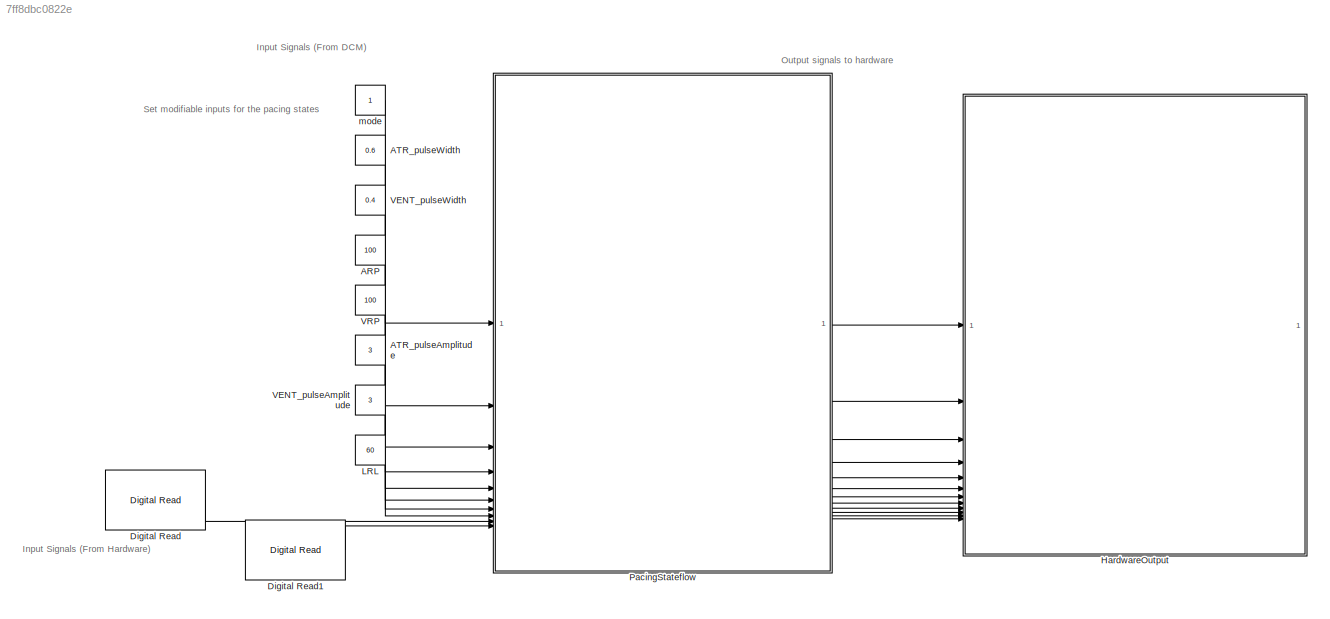
MODEL slx_7ff8dbc0822e
KIND model
CONFIG AbsTol = auto
CONFIG EnableMultiTasking = on
CONFIG FixedStep = 1e-3
CONFIG MaxStep = auto
CONFIG MinStep = auto
CONFIG RelTol = 1e-3
CONFIG SampleTimeConstraint = Unconstrained
CONFIG SolverName = FixedStepAuto
CONFIG StartTime = 0.0
CONFIG StopTime = 10.0
BLOCK [Constant] ARP
  Value = 100
BLOCK [Constant] ATR_pulseAmplitude
  Value = 3
BLOCK [Constant] ATR_pulseWidth
  OutDataTypeStr = double
  Value = 0.6
BLOCK [Reference] Digital Read  REF=frdmk64flib/Digital Read
  SourceBlock = frdmk64flib/Digital Read
  SourceType = freedomk64f.DigitalRead
BLOCK [Reference] Digital Read1  REF=frdmk64flib/Digital Read
  SourceBlock = frdmk64flib/Digital Read
  SourceType = freedomk64f.DigitalRead
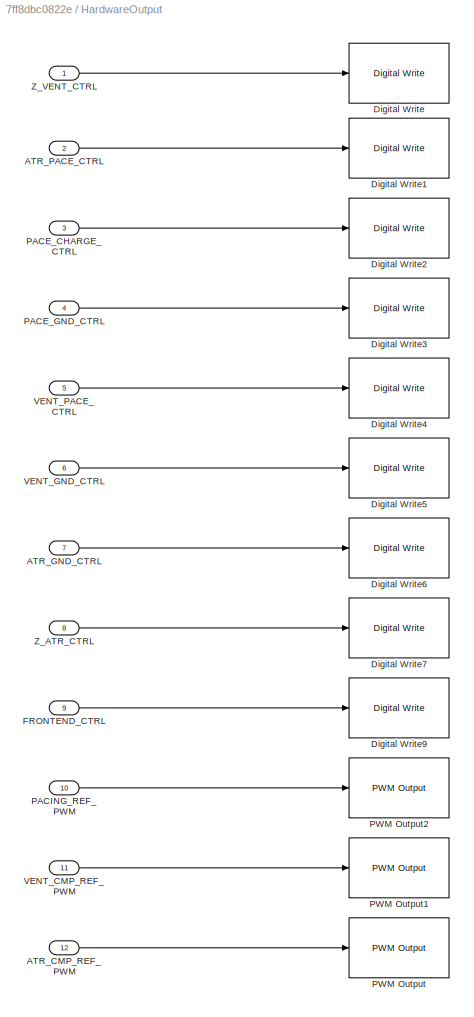
BLOCK [SubSystem] HardwareOutput
BLOCK [Inport] HardwareOutput/ATR_CMP_REF_PWM
  Port = 12
BLOCK [Inport] HardwareOutput/ATR_GND_CTRL
  Port = 7
BLOCK [Inport] HardwareOutput/ATR_PACE_CTRL
  Port = 2
BLOCK [Reference] HardwareOutput/Digital Write  REF=frdmk64flib/Digital Write
  SourceBlock = frdmk64flib/Digital Write
  SourceType = freedomk64f.DigitalWrite
BLOCK [Reference] HardwareOutput/Digital Write1  REF=frdmk64flib/Digital Write
  SourceBlock = frdmk64flib/Digital Write
  SourceType = freedomk64f.DigitalWrite
BLOCK [Reference] HardwareOutput/Digital Write2  REF=frdmk64flib/Digital Write
  SourceBlock = frdmk64flib/Digital Write
  SourceType = freedomk64f.DigitalWrite
BLOCK [Reference] HardwareOutput/Digital Write3  REF=frdmk64flib/Digital Write
  SourceBlock = frdmk64flib/Digital Write
  SourceType = freedomk64f.DigitalWrite
BLOCK [Reference] HardwareOutput/Digital Write4  REF=frdmk64flib/Digital Write
  SourceBlock = frdmk64flib/Digital Write
  SourceType = freedomk64f.DigitalWrite
BLOCK [Reference] HardwareOutput/Digital Write5  REF=frdmk64flib/Digital Write
  SourceBlock = frdmk64flib/Digital Write
  SourceType = freedomk64f.DigitalWrite
BLOCK [Reference] HardwareOutput/Digital Write6  REF=frdmk64flib/Digital Write
  SourceBlock = frdmk64flib/Digital Write
  SourceType = freedomk64f.DigitalWrite
BLOCK [Reference] HardwareOutput/Digital Write7  REF=frdmk64flib/Digital Write
  SourceBlock = frdmk64flib/Digital Write
  SourceType = freedomk64f.DigitalWrite
BLOCK [Reference] HardwareOutput/Digital Write9  REF=frdmk64flib/Digital Write
  SourceBlock = frdmk64flib/Digital Write
  SourceType = freedomk64f.DigitalWrite
BLOCK [Inport] HardwareOutput/FRONTEND_CTRL
  Port = 9
BLOCK [Inport] HardwareOutput/PACE_CHARGE_CTRL
  Port = 3
BLOCK [Inport] HardwareOutput/PACE_GND_CTRL
  Port = 4
BLOCK [Inport] HardwareOutput/PACING_REF_PWM
  Port = 10
BLOCK [Reference] HardwareOutput/PWM Output  REF=frdmk64flib/PWM Output
  SourceBlock = frdmk64flib/PWM Output
  SourceType = freedomk64f.PWMOutput
BLOCK [Reference] HardwareOutput/PWM Output1  REF=frdmk64flib/PWM Output
  SourceBlock = frdmk64flib/PWM Output
  SourceType = freedomk64f.PWMOutput
BLOCK [Reference] HardwareOutput/PWM Output2  REF=frdmk64flib/PWM Output
  SourceBlock = frdmk64flib/PWM Output
  SourceType = freedomk64f.PWMOutput
BLOCK [Inport] HardwareOutput/VENT_CMP_REF_PWM
  Port = 11
BLOCK [Inport] HardwareOutput/VENT_GND_CTRL
  Port = 6
BLOCK [Inport] HardwareOutput/VENT_PACE_CTRL
  Port = 5
BLOCK [Inport] HardwareOutput/Z_ATR_CTRL
  Port = 8
BLOCK [Inport] HardwareOutput/Z_VENT_CTRL
BLOCK [Constant] LRL
  Value = 60
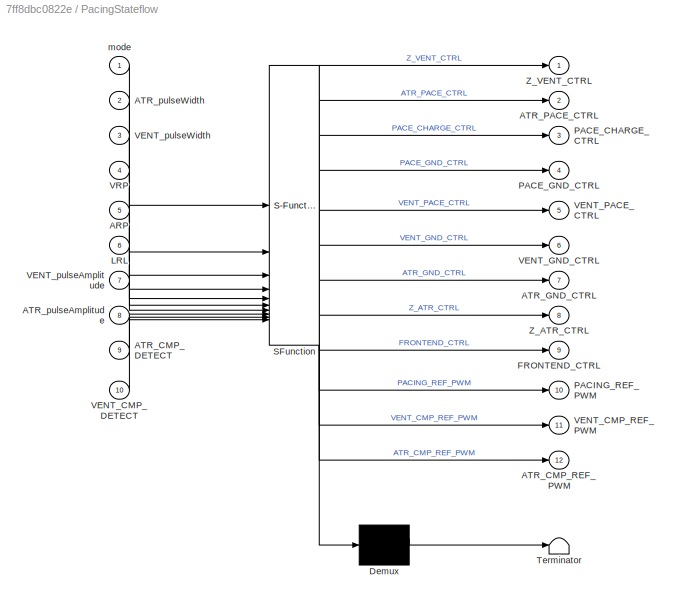
BLOCK [SubSystem] PacingStateflow
  ErrorFcn = Stateflow.Translate.translate
  PermitHierarchicalResolution = ExplicitOnly
  PortSchema = {"entries":[{"content":{"sides":[{"content":{"connectorIds":["In1","In2","In3","In5","In4","In8","In7","In6","In9","In10"]},"type":"ConnectorPlacement.EquallySpacedRectSide","uuid":"576c6451-25f7-4bf9-8ba9-b62bfe0038eb"},{"content":{"connectorIds":["Out1","Out2","Out3","Out4","Out5","Out6","Out7","Out8","Out9","Out10","Out11","Out12"],"side":"RIGHT"},"type":"ConnectorPlacement.EquallySpacedRectSid...<+375ch>
  SFBlockType = Chart
  TreatAsAtomicUnit = on
BLOCK [Demux] PacingStateflow/ Demux 
  Outputs = 1
BLOCK [S-Function] PacingStateflow/ SFunction 
  EnableBusSupport = on
  FunctionName = sf_sfun
  PortCounts = [10 13]
  SFcnIsStateOwnerBlock = off
  SFunctionDeploymentMode = off
  Tag = Stateflow S-Function 3
BLOCK [Terminator] PacingStateflow/ Terminator 
BLOCK [Inport] PacingStateflow/ARP
  Port = 5
BLOCK [Inport] PacingStateflow/ATR_CMP_DETECT
  Port = 9
BLOCK [Outport] PacingStateflow/ATR_CMP_REF_PWM
  Port = 12
BLOCK [Outport] PacingStateflow/ATR_GND_CTRL
  Port = 7
BLOCK [Outport] PacingStateflow/ATR_PACE_CTRL
  Port = 2
BLOCK [Inport] PacingStateflow/ATR_pulseAmplitude
  Port = 8
BLOCK [Inport] PacingStateflow/ATR_pulseWidth
  Port = 2
BLOCK [Outport] PacingStateflow/FRONTEND_CTRL
  Port = 9
BLOCK [Inport] PacingStateflow/LRL
  Port = 6
BLOCK [Outport] PacingStateflow/PACE_CHARGE_CTRL
  Port = 3
BLOCK [Outport] PacingStateflow/PACE_GND_CTRL
  Port = 4
BLOCK [Outport] PacingStateflow/PACING_REF_PWM
  Port = 10
BLOCK [Inport] PacingStateflow/VENT_CMP_DETECT
  Port = 10
BLOCK [Outport] PacingStateflow/VENT_CMP_REF_PWM
  Port = 11
BLOCK [Outport] PacingStateflow/VENT_GND_CTRL
  Port = 6
BLOCK [Outport] PacingStateflow/VENT_PACE_CTRL
  Port = 5
BLOCK [Inport] PacingStateflow/VENT_pulseAmplitude
  Port = 7
BLOCK [Inport] PacingStateflow/VENT_pulseWidth
  Port = 3
BLOCK [Inport] PacingStateflow/VRP
  Port = 4
BLOCK [Outport] PacingStateflow/Z_ATR_CTRL
  Port = 8
BLOCK [Outport] PacingStateflow/Z_VENT_CTRL
BLOCK [Inport] PacingStateflow/mode
BLOCK [Constant] VENT_pulseAmplitude
  Value = 3
BLOCK [Constant] VENT_pulseWidth
  Value = 0.4
BLOCK [Constant] VRP
  OutDataTypeStr = double
  Value = 100
BLOCK [Constant] mode
  OutDataTypeStr = int32
ANNOTATION (root): Input Signals (From Hardware)
ANNOTATION (root): Output signals to hardware
ANNOTATION (root): Input Signals (From DCM)
ANNOTATION (root): Set modifiable inputs for the pacing states
LINE ARP:1 -> PacingStateflow:5
LINE ATR_pulseAmplitude:1 -> PacingStateflow:8
LINE ATR_pulseWidth:1 -> PacingStateflow:2
LINE Digital Read1:1 -> PacingStateflow:10
LINE Digital Read:1 -> PacingStateflow:9
LINE HardwareOutput/ATR_CMP_REF_PWM:1 -> HardwareOutput/PWM Output:1
LINE HardwareOutput/ATR_GND_CTRL:1 -> HardwareOutput/Digital Write6:1
LINE HardwareOutput/ATR_PACE_CTRL:1 -> HardwareOutput/Digital Write1:1
LINE HardwareOutput/FRONTEND_CTRL:1 -> HardwareOutput/Digital Write9:1
LINE HardwareOutput/PACE_CHARGE_CTRL:1 -> HardwareOutput/Digital Write2:1
LINE HardwareOutput/PACE_GND_CTRL:1 -> HardwareOutput/Digital Write3:1
LINE HardwareOutput/PACING_REF_PWM:1 -> HardwareOutput/PWM Output2:1
LINE HardwareOutput/VENT_CMP_REF_PWM:1 -> HardwareOutput/PWM Output1:1
LINE HardwareOutput/VENT_GND_CTRL:1 -> HardwareOutput/Digital Write5:1
LINE HardwareOutput/VENT_PACE_CTRL:1 -> HardwareOutput/Digital Write4:1
LINE HardwareOutput/Z_ATR_CTRL:1 -> HardwareOutput/Digital Write7:1
LINE HardwareOutput/Z_VENT_CTRL:1 -> HardwareOutput/Digital Write:1
LINE LRL:1 -> PacingStateflow:6
LINE PacingStateflow:1 -> HardwareOutput:1
LINE PacingStateflow:10 -> HardwareOutput:10
LINE PacingStateflow:11 -> HardwareOutput:11
LINE PacingStateflow:12 -> HardwareOutput:12
LINE PacingStateflow:2 -> HardwareOutput:2
LINE PacingStateflow:3 -> HardwareOutput:3
LINE PacingStateflow:4 -> HardwareOutput:4
LINE PacingStateflow:5 -> HardwareOutput:5
LINE PacingStateflow:6 -> HardwareOutput:6
LINE PacingStateflow:7 -> HardwareOutput:7
LINE PacingStateflow:8 -> HardwareOutput:8
LINE PacingStateflow:9 -> HardwareOutput:9
LINE VENT_pulseAmplitude:1 -> PacingStateflow:7
LINE VENT_pulseWidth:1 -> PacingStateflow:3
LINE VRP:1 -> PacingStateflow:4
LINE mode:1 -> PacingStateflow:1
CHART PacingStateflow states=31 transitions=25
  STATE_LABEL 'AOO'
  STATE_LABEL '<!DOCTYPE HTML PUBLIC "-//W3C//DTD HTML 4.0//EN" "http://www.w3.org/TR/REC-html40/strict.dtd">\n<html><head><meta name="qrichtext" content="1" /><style type="text/css">\np, li { white-space: pre-wrap; }\n</style></head><body align="left" style=" font-family:\'Helvetica\'; font-size:12px; font-weight:400; font-style:normal;">\n<p align="left" style=" margin-top:0px; margin-bottom:0px; margin-left:0px; ma...<+315ch>'
  STATE_LABEL '<!DOCTYPE HTML PUBLIC "-//W3C//DTD HTML 4.0//EN" "http://www.w3.org/TR/REC-html40/strict.dtd">\n<html><head><meta name="qrichtext" content="1" /><style type="text/css">\np, li { white-space: pre-wrap; }\n</style></head><body align="left" style=" font-family:\'Helvetica\'; font-size:12px; font-weight:400; font-style:normal;">\n<p align="left" style=" margin-top:0px; margin-bottom:0px; margin-left:0px; ma...<+332ch>'
  STATE_LABEL 'AOO_Charge\nentry:\nPACING_REF_PWM = 100*(ATR_pulseAmplitude/double(5.0));\n% Charging C22\nATR_PACE_CTRL = false;\nVENT_PACE_CTRL = false;\nPACE_CHARGE_CTRL = true;\nPACE_GND_CTRL = true;\nZ_ATR_CTRL = false;\nZ_VENT_CTRL = false;\n% Discharging C21\nATR_GND_CTRL = true;\nVENT_GND_CTRL = false;'
  STATE_LABEL 'AOO_Discharge\nentry:\nPACE_CHARGE_CTRL = false;\nPACE_GND_CTRL = true;\nATR_PACE_CTRL = true;\nATR_GND_CTRL = false;\nZ_ATR_CTRL = false;\nZ_VENT_CTRL = false;\nVENT_GND_CTRL = false;\nVENT_PACE_CTRL = false;'
  STATE_LABEL '<!DOCTYPE HTML PUBLIC "-//W3C//DTD HTML 4.0//EN" "http://www.w3.org/TR/REC-html40/strict.dtd">\n<html><head><meta name="qrichtext" content="1" /><style type="text/css">\np, li { white-space: pre-wrap; }\n</style></head><body align="left" style=" font-family:\'Helvetica\'; font-size:12px; font-weight:400; font-style:normal;">\n<p align="left" style=" margin-top:0px; margin-bottom:0px; margin-left:0px; ma...<+630ch>'
  STATE_LABEL '[after(pulseTime - ATR_pulseWidth, msec)]'
  STATE_LABEL '[after(ATR_pulseWidth,msec)]'
  STATE_LABEL '<!DOCTYPE HTML PUBLIC "-//W3C//DTD HTML 4.0//EN" "http://www.w3.org/TR/REC-html40/strict.dtd">\n<html><head><meta name="qrichtext" content="1" /><style type="text/css">\np, li { white-space: pre-wrap; }\n</style></head><body align="left" style=" font-family:\'Helvetica\'; font-size:12px; font-weight:400; font-style:normal;">\n<p align="left" style=" margin-top:0px; margin-bottom:0px; margin-left:0px; ma...<+315ch>'
  STATE_LABEL '<!DOCTYPE HTML PUBLIC "-//W3C//DTD HTML 4.0//EN" "http://www.w3.org/TR/REC-html40/strict.dtd">\n<html><head><meta name="qrichtext" content="1" /><style type="text/css">\np, li { white-space: pre-wrap; }\n</style></head><body align="left" style=" font-family:\'Helvetica\'; font-size:12px; font-weight:400; font-style:normal;">\n<p align="left" style=" margin-top:0px; margin-bottom:0px; margin-left:0px; ma...<+332ch>'
  STATE_LABEL 'AOO_Charge\nentry:\nPACING_REF_PWM = 100*(ATR_pulseAmplitude/double(5.0));\n% Charging C22\nATR_PACE_CTRL = false;\nVENT_PACE_CTRL = false;\nPACE_CHARGE_CTRL = true;\nPACE_GND_CTRL = true;\nZ_ATR_CTRL = false;\nZ_VENT_CTRL = false;\n% Discharging C21\nATR_GND_CTRL = true;\nVENT_GND_CTRL = false;'
  STATE_LABEL 'AOO_Discharge\nentry:\nPACE_CHARGE_CTRL = false;\nPACE_GND_CTRL = true;\nATR_PACE_CTRL = true;\nATR_GND_CTRL = false;\nZ_ATR_CTRL = false;\nZ_VENT_CTRL = false;\nVENT_GND_CTRL = false;\nVENT_PACE_CTRL = false;'
  STATE_LABEL '<!DOCTYPE HTML PUBLIC "-//W3C//DTD HTML 4.0//EN" "http://www.w3.org/TR/REC-html40/strict.dtd">\n<html><head><meta name="qrichtext" content="1" /><style type="text/css">\np, li { white-space: pre-wrap; }\n</style></head><body align="left" style=" font-family:\'Helvetica\'; font-size:12px; font-weight:400; font-style:normal;">\n<p align="left" style=" margin-top:0px; margin-bottom:0px; margin-left:0px; ma...<+630ch>'
  STATE_LABEL '<!DOCTYPE HTML PUBLIC "-//W3C//DTD HTML 4.0//EN" "http://www.w3.org/TR/REC-html40/strict.dtd">\n<html><head><meta name="qrichtext" content="1" /><style type="text/css">\np, li { white-space: pre-wrap; }\n</style></head><body align="left" style=" font-family:\'Helvetica\'; font-size:12px; font-weight:400; font-style:normal;">\n<p align="left" style=" margin-top:0px; margin-bottom:0px; margin-left:0px; ma...<+158ch>'
  STATE_LABEL 'Entry_State\nentry:\nVENT_PACE_CTRL = false;\nATR_PACE_CTRL = false;\nVENT_GND_CTRL = false;\nATR_GND_CTRL = false;\nPACE_GND_CTRL = false;\nPACE_CHARGE_CTRL = false;\nFRONTEND_CTRL = false;\nVENT_CMP_REF_PWM = 0;\nATR_CMP_REF_PWM = 0;\nZ_ATR_CTRL = false;\nZ_VENT_CTRL = false;\npulseTime = 60000/LRL;'
  STATE_LABEL 'AAI'
  STATE_LABEL '<!DOCTYPE HTML PUBLIC "-//W3C//DTD HTML 4.0//EN" "http://www.w3.org/TR/REC-html40/strict.dtd">\n<html><head><meta name="qrichtext" content="1" /><style type="text/css">\np, li { white-space: pre-wrap; }\n</style></head><body align="left" style=" font-family:\'Helvetica\'; font-size:12px; font-weight:400; font-style:normal;">\n<p align="left" style=" margin-top:0px; margin-bottom:0px; margin-left:0px; ma...<+222ch>'
  STATE_LABEL '<!DOCTYPE HTML PUBLIC "-//W3C//DTD HTML 4.0//EN" "http://www.w3.org/TR/REC-html40/strict.dtd">\n<html><head><meta name="qrichtext" content="1" /><style type="text/css">\np, li { white-space: pre-wrap; }\n</style></head><body align="left" style=" font-family:\'Helvetica\'; font-size:12px; font-weight:400; font-style:normal;">\n<p align="left" style=" margin-top:0px; margin-bottom:0px; margin-left:0px; ma...<+213ch>'
  STATE_LABEL 'AAI_Sensing\nentry:\n% Charging C22\nFRONTEND_CTRL = true;\nATR_CMP_REF_PWM = 55;\nPACING_REF_PWM = 100*(ATR_pulseAmplitude / 5.0);\nVENT_PACE_CTRL = false;\nATR_PACE_CTRL = false;\nPACE_CHARGE_CTRL = true;\n% Discharging C21\nPACE_GND_CTRL = true;\nATR_GND_CTRL = true;\nVENT_GND_CTRL = false;'
  STATE_LABEL 'AAI_Charge\nentry:\n% Charging C22\nFRONTEND_CTRL = true;\nATR_CMP_REF_PWM = 55;\nPACING_REF_PWM = 100*(ATR_pulseAmplitude / 5.0);\nVENT_PACE_CTRL = false;\nATR_PACE_CTRL = false;\nPACE_CHARGE_CTRL = true;\n% Discharging C21\nPACE_GND_CTRL = true;\nATR_GND_CTRL = true;\nVENT_GND_CTRL = false;'
  STATE_LABEL '<!DOCTYPE HTML PUBLIC "-//W3C//DTD HTML 4.0//EN" "http://www.w3.org/TR/REC-html40/strict.dtd">\n<html><head><meta name="qrichtext" content="1" /><style type="text/css">\np, li { white-space: pre-wrap; }\n</style></head><body align="left" style=" font-family:\'Helvetica\'; font-size:12px; font-weight:400; font-style:normal;">\n<p align="left" style=" margin-top:0px; margin-bottom:0px; margin-left:0px; ma...<+185ch>'
  STATE_LABEL 'AAI_Discharge\nentry:\nPACE_CHARGE_CTRL = false;\nPACE_GND_CTRL = true;\nVENT_PACE_CTRL = false;\nATR_PACE_CTRL = true;\nATR_GND_CTRL = false;\nVENT_GND_CTRL = false;'
  STATE_LABEL '<!DOCTYPE HTML PUBLIC "-//W3C//DTD HTML 4.0//EN" "http://www.w3.org/TR/REC-html40/strict.dtd">\n<html><head><meta name="qrichtext" content="1" /><style type="text/css">\np, li { white-space: pre-wrap; }\n</style></head><body align="left" style=" font-family:\'Helvetica\'; font-size:12px; font-weight:400; font-style:normal;">\n<p align="left" style=" margin-top:0px; margin-bottom:0px; margin-left:0px; ma...<+228ch>'
  STATE_LABEL '<!DOCTYPE HTML PUBLIC "-//W3C//DTD HTML 4.0//EN" "http://www.w3.org/TR/REC-html40/strict.dtd">\n<html><head><meta name="qrichtext" content="1" /><style type="text/css">\np, li { white-space: pre-wrap; }\n</style></head><body align="left" style=" font-family:\'Helvetica\'; font-size:12px; font-weight:400; font-style:normal;">\n<p align="left" style=" margin-top:0px; margin-bottom:0px; margin-left:0px; ma...<+189ch>'
  STATE_LABEL 'after(ARP, msec)'
  STATE_LABEL '[ATR_CMP_DETECT == true]'
  STATE_LABEL 'after(ATR_pulseWidth, msec)'
  STATE_LABEL 'after(pulseTime - ARP - ATR_pulseWidth, msec)'
  STATE_LABEL '<!DOCTYPE HTML PUBLIC "-//W3C//DTD HTML 4.0//EN" "http://www.w3.org/TR/REC-html40/strict.dtd">\n<html><head><meta name="qrichtext" content="1" /><style type="text/css">\np, li { white-space: pre-wrap; }\n</style></head><body align="left" style=" font-family:\'Helvetica\'; font-size:12px; font-weight:400; font-style:normal;">\n<p align="left" style=" margin-top:0px; margin-bottom:0px; margin-left:0px; ma...<+222ch>'
  STATE_LABEL '<!DOCTYPE HTML PUBLIC "-//W3C//DTD HTML 4.0//EN" "http://www.w3.org/TR/REC-html40/strict.dtd">\n<html><head><meta name="qrichtext" content="1" /><style type="text/css">\np, li { white-space: pre-wrap; }\n</style></head><body align="left" style=" font-family:\'Helvetica\'; font-size:12px; font-weight:400; font-style:normal;">\n<p align="left" style=" margin-top:0px; margin-bottom:0px; margin-left:0px; ma...<+213ch>'
  STATE_LABEL 'AAI_Sensing\nentry:\n% Charging C22\nFRONTEND_CTRL = true;\nATR_CMP_REF_PWM = 55;\nPACING_REF_PWM = 100*(ATR_pulseAmplitude / 5.0);\nVENT_PACE_CTRL = false;\nATR_PACE_CTRL = false;\nPACE_CHARGE_CTRL = true;\n% Discharging C21\nPACE_GND_CTRL = true;\nATR_GND_CTRL = true;\nVENT_GND_CTRL = false;'
  STATE_LABEL 'AAI_Charge\nentry:\n% Charging C22\nFRONTEND_CTRL = true;\nATR_CMP_REF_PWM = 55;\nPACING_REF_PWM = 100*(ATR_pulseAmplitude / 5.0);\nVENT_PACE_CTRL = false;\nATR_PACE_CTRL = false;\nPACE_CHARGE_CTRL = true;\n% Discharging C21\nPACE_GND_CTRL = true;\nATR_GND_CTRL = true;\nVENT_GND_CTRL = false;'
  STATE_LABEL '<!DOCTYPE HTML PUBLIC "-//W3C//DTD HTML 4.0//EN" "http://www.w3.org/TR/REC-html40/strict.dtd">\n<html><head><meta name="qrichtext" content="1" /><style type="text/css">\np, li { white-space: pre-wrap; }\n</style></head><body align="left" style=" font-family:\'Helvetica\'; font-size:12px; font-weight:400; font-style:normal;">\n<p align="left" style=" margin-top:0px; margin-bottom:0px; margin-left:0px; ma...<+185ch>'
  STATE_LABEL 'AAI_Discharge\nentry:\nPACE_CHARGE_CTRL = false;\nPACE_GND_CTRL = true;\nVENT_PACE_CTRL = false;\nATR_PACE_CTRL = true;\nATR_GND_CTRL = false;\nVENT_GND_CTRL = false;'
  STATE_LABEL '<!DOCTYPE HTML PUBLIC "-//W3C//DTD HTML 4.0//EN" "http://www.w3.org/TR/REC-html40/strict.dtd">\n<html><head><meta name="qrichtext" content="1" /><style type="text/css">\np, li { white-space: pre-wrap; }\n</style></head><body align="left" style=" font-family:\'Helvetica\'; font-size:12px; font-weight:400; font-style:normal;">\n<p align="left" style=" margin-top:0px; margin-bottom:0px; margin-left:0px; ma...<+228ch>'
  STATE_LABEL '<!DOCTYPE HTML PUBLIC "-//W3C//DTD HTML 4.0//EN" "http://www.w3.org/TR/REC-html40/strict.dtd">\n<html><head><meta name="qrichtext" content="1" /><style type="text/css">\np, li { white-space: pre-wrap; }\n</style></head><body align="left" style=" font-family:\'Helvetica\'; font-size:12px; font-weight:400; font-style:normal;">\n<p align="left" style=" margin-top:0px; margin-bottom:0px; margin-left:0px; ma...<+189ch>'
  STATE_LABEL 'VOO'
  STATE_LABEL '<!DOCTYPE HTML PUBLIC "-//W3C//DTD HTML 4.0//EN" "http://www.w3.org/TR/REC-html40/strict.dtd">\n<html><head><meta name="qrichtext" content="1" /><style type="text/css">\np, li { white-space: pre-wrap; }\n</style></head><body align="left" style=" font-family:\'MS Shell Dlg 2\'; font-size:8.1pt; font-weight:400; font-style:normal;">\n<p align="left" style=" margin-top:0px; margin-bottom:0px; margin-left:0...<+346ch>'
  STATE_LABEL '<!DOCTYPE HTML PUBLIC "-//W3C//DTD HTML 4.0//EN" "http://www.w3.org/TR/REC-html40/strict.dtd">\n<html><head><meta name="qrichtext" content="1" /><style type="text/css">\np, li { white-space: pre-wrap; }\n</style></head><body align="left" style=" font-family:\'Helvetica\'; font-size:12px; font-weight:400; font-style:normal;">\n<p align="left" style=" margin-top:0px; margin-bottom:0px; margin-left:0px; ma...<+367ch>'
  STATE_LABEL 'VOO_Charge\nentry:\nPACING_REF_PWM = 100*(ATR_pulseAmplitude/double(5.0));\n% Charging C22\nATR_PACE_CTRL = false;\nVENT_PACE_CTRL = false;\nPACE_CHARGE_CTRL = true;\nPACE_GND_CTRL = true;\nZ_ATR_CTRL = false;\nZ_VENT_CTRL = false;\n% Discharging C21\nATR_GND_CTRL = false;\nVENT_GND_CTRL = true;'
CHART  states=0 transitions=0
